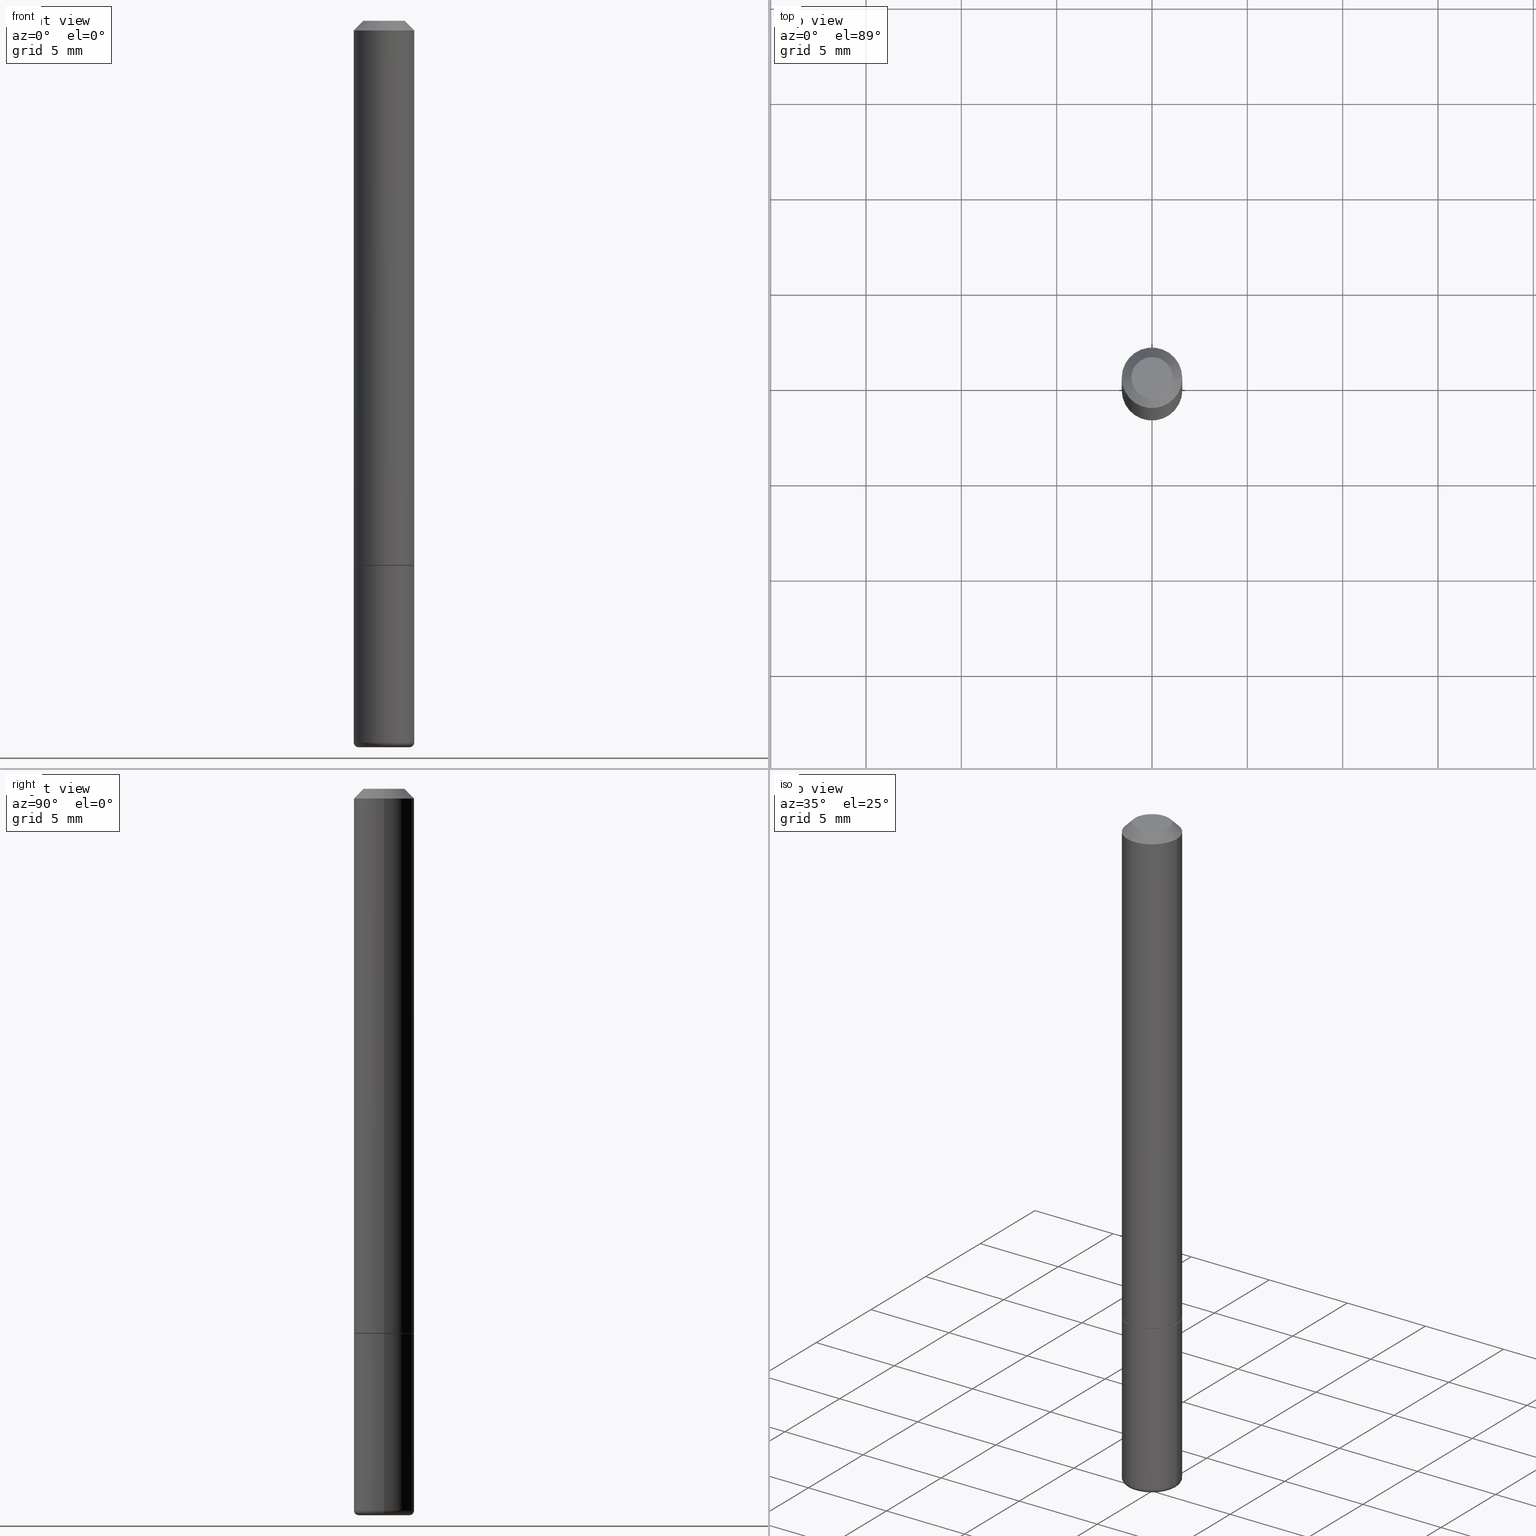
[diagram: canonical four-view strip — front | top / right | iso, engineering-drawing reading convention]
A machine part, canonical four-view strip (front | top / right | iso — engineering-drawing reading convention). The complete STEP part file that produces these views, byte-faithful:
ISO-10303-21;
HEADER;
FILE_DESCRIPTION (( 'STEP AP203' ),
    '1' );
FILE_NAME ('38775.STEP',
    '2024-03-03T12:03:35',
    ( '' ),
    ( '' ),
    'SwSTEP 2.0',
    'SolidWorks 2023',
    '' );
FILE_SCHEMA (( 'CONFIG_CONTROL_DESIGN' ));
ENDSEC;

DATA;
#1 = CC_DESIGN_PERSON_AND_ORGANIZATION_ASSIGNMENT ( #345, #135, ( #401 ) ) ;
#2 = AXIS2_PLACEMENT_3D ( 'NONE', #221, #358, #158 ) ;
#3 = AXIS2_PLACEMENT_3D ( 'NONE', #182, #318, #145 ) ;
#4 = DIRECTION ( 'NONE',  ( -2.445468806185136597E-29, 3.491481338843145583E-15, 1.000000000000000000 ) ) ;
#5 = DIRECTION ( 'NONE',  ( -1.000000000000000000, 6.982962677686265922E-15, -4.876176775795935793E-29 ) ) ;
#6 = ADVANCED_FACE ( 'NONE', ( #376 ), #415, .T. ) ;
#7 = CARTESIAN_POINT ( 'NONE',  ( 0.06250000000000001388, -4.986107516375840208E-16, -0.02000000000000006981 ) ) ;
#8 = EDGE_CURVE ( 'NONE', #286, #308, #151, .T. ) ;
#9 = ORIENTED_EDGE ( 'NONE', *, *, #80, .T. ) ;
#10 = VECTOR ( 'NONE', #352, 39.37007874015748143 ) ;
#11 = CC_DESIGN_APPROVAL ( #118, ( #390 ) ) ;
#12 = EDGE_CURVE ( 'NONE', #308, #286, #209, .T. ) ;
#13 = ORIENTED_EDGE ( 'NONE', *, *, #255, .T. ) ;
#14 = ORIENTED_EDGE ( 'NONE', *, *, #255, .F. ) ;
#15 = PERSON_AND_ORGANIZATION ( #346, #226 ) ;
#16 = CC_DESIGN_PERSON_AND_ORGANIZATION_ASSIGNMENT ( #263, #183, ( #139 ) ) ;
#17 = CARTESIAN_POINT ( 'NONE',  ( 0.05250000000000000500, -5.603827548843246548E-15, -1.499999999999999778 ) ) ;
#18 =( NAMED_UNIT ( * ) SI_UNIT ( $, .STERADIAN. ) SOLID_ANGLE_UNIT ( ) );
#19 = CARTESIAN_POINT ( 'NONE',  ( 0.06249999999999990286, -5.638742362231678986E-15, -1.490000000000000213 ) ) ;
#20 = AXIS2_PLACEMENT_3D ( 'NONE', #61, #276, #404 ) ;
#21 = CARTESIAN_POINT ( 'NONE',  ( 0.000000000000000000, 0.000000000000000000, 0.000000000000000000 ) ) ;
#22 = CARTESIAN_POINT ( 'NONE',  ( -0.04250000000000002387, 3.316907271900975110E-16, -2.561107494060466786E-17 ) ) ;
#23 = CALENDAR_DATE ( 2024, 3, 3 ) ;
#24 = CARTESIAN_POINT ( 'NONE',  ( 0.05250000000000000500, -5.568912735454817265E-15, -1.490000000000000213 ) ) ;
#25 =( LENGTH_UNIT ( ) NAMED_UNIT ( * ) SI_UNIT ( $, .METRE. ) );
#26 = PERSON_AND_ORGANIZATION ( #346, #226 ) ;
#27 = ORIENTED_EDGE ( 'NONE', *, *, #362, .F. ) ;
#28 = DIRECTION ( 'NONE',  ( 1.000000000000000000, -6.982962677686269866E-15, 0.000000000000000000 ) ) ;
#29 = TOROIDAL_SURFACE ( 'NONE', #167, 0.05250000000000000500, 0.009999999999999807654 ) ;
#30 = AXIS2_PLACEMENT_3D ( 'NONE', #189, #39, #159 ) ;
#31 = CARTESIAN_POINT ( 'NONE',  ( 2.751152406958279232E-29, -3.927916506198539224E-15, -1.125000000000000222 ) ) ;
#32 = DESIGN_CONTEXT ( 'detailed design', #387, 'design' ) ;
#33 = ORIENTED_EDGE ( 'NONE', *, *, #273, .T. ) ;
#34 = CONICAL_SURFACE ( 'NONE', #281, 0.06149999999999999911, 0.7853981633975591903 ) ;
#35 = FACE_OUTER_BOUND ( 'NONE', #42, .T. ) ;
#36 = CARTESIAN_POINT ( 'NONE',  ( -0.06149999999999999911, -3.490932723706077616E-15, -1.125000000000000222 ) ) ;
#37 = DIRECTION ( 'NONE',  ( -2.445468806185136597E-29, 3.491481338843145583E-15, 1.000000000000000000 ) ) ;
#38 = CARTESIAN_POINT ( 'NONE',  ( -0.05250000000000000500, -4.829272258602234782E-15, -1.490000000000000213 ) ) ;
#39 = DIRECTION ( 'NONE',  ( -2.445468806185136597E-29, 3.491481338843145583E-15, 1.000000000000000000 ) ) ;
#40 = AXIS2_PLACEMENT_3D ( 'NONE', #88, #62, #152 ) ;
#41 = AXIS2_PLACEMENT_3D ( 'NONE', #341, #212, #28 ) ;
#42 = EDGE_LOOP ( 'NONE', ( #302, #107, #136, #14 ) ) ;
#43 = DIRECTION ( 'NONE',  ( -1.000000000000000000, 6.982962677686267499E-15, 0.000000000000000000 ) ) ;
#44 = VERTEX_POINT ( 'NONE', #380 ) ;
#45 = VECTOR ( 'NONE', #214, 39.37007874015748143 ) ;
#46 = CIRCLE ( 'NONE', #20, 0.06149999999999999911 ) ;
#47 = ORIENTED_EDGE ( 'NONE', *, *, #98, .F. ) ;
#48 = ORIENTED_EDGE ( 'NONE', *, *, #322, .F. ) ;
#49 = APPROVAL ( #284, 'UNSPECIFIED' ) ;
#50 = ORIENTED_EDGE ( 'NONE', *, *, #69, .T. ) ;
#51 = DIRECTION ( 'NONE',  ( 1.000000000000000000, -6.982962677686267499E-15, 4.879498284297441184E-29 ) ) ;
#52 = VERTEX_POINT ( 'NONE', #277 ) ;
#53 = FACE_OUTER_BOUND ( 'NONE', #364, .T. ) ;
#54 = AXIS2_PLACEMENT_3D ( 'NONE', #293, #129, #95 ) ;
#55 = DIRECTION ( 'NONE',  ( -2.445468806185136597E-29, 3.491481338843145583E-15, 1.000000000000000000 ) ) ;
#56 = ORIENTED_EDGE ( 'NONE', *, *, #173, .T. ) ;
#57 = PERSON_AND_ORGANIZATION ( #346, #226 ) ;
#58 = ORIENTED_EDGE ( 'NONE', *, *, #351, .F. ) ;
#59 = CALENDAR_DATE ( 2024, 3, 3 ) ;
#60 = FACE_OUTER_BOUND ( 'NONE', #76, .T. ) ;
#61 = CARTESIAN_POINT ( 'NONE',  ( 2.751152406958279232E-29, -3.927916506198539224E-15, -1.125000000000000222 ) ) ;
#62 = DIRECTION ( 'NONE',  ( -2.445468806185136597E-29, 3.491481338843145583E-15, 1.000000000000000000 ) ) ;
#63 = DIRECTION ( 'NONE',  ( 1.000000000000000000, -6.982962677686273021E-15, 0.000000000000000000 ) ) ;
#64 = AXIS2_PLACEMENT_3D ( 'NONE', #24, #67, #63 ) ;
#65 = TOROIDAL_SURFACE ( 'NONE', #30, 0.05250000000000000500, 0.009999999999999807654 ) ;
#66 = ADVANCED_FACE ( 'NONE', ( #249 ), #283, .T. ) ;
#67 = DIRECTION ( 'NONE',  ( -6.982962677686266711E-15, -1.000000000000000000, 3.491481338843145583E-15 ) ) ;
#68 = FACE_OUTER_BOUND ( 'NONE', #237, .T. ) ;
#69 = EDGE_CURVE ( 'NONE', #270, #300, #296, .T. ) ;
#70 = AXIS2_PLACEMENT_3D ( 'NONE', #385, #316, #217 ) ;
#71 = DIRECTION ( 'NONE',  ( 0.7071067811865466846, -7.319954787623252890E-15, -0.7071067811865483499 ) ) ;
#72 = AXIS2_PLACEMENT_3D ( 'NONE', #38, #294, #252 ) ;
#73 = AXIS2_PLACEMENT_3D ( 'NONE', #156, #288, #126 ) ;
#74 = EDGE_CURVE ( 'NONE', #197, #52, #225, .T. ) ;
#75 = ORIENTED_EDGE ( 'NONE', *, *, #416, .T. ) ;
#76 = EDGE_LOOP ( 'NONE', ( #199, #176, #272, #140 ) ) ;
#77 = ORIENTED_EDGE ( 'NONE', *, *, #12, .T. ) ;
#78 = SECURITY_CLASSIFICATION_LEVEL ( 'unclassified' ) ;
#79 = AXIS2_PLACEMENT_3D ( 'NONE', #31, #178, #280 ) ;
#80 = EDGE_CURVE ( 'NONE', #373, #308, #148, .T. ) ;
#81 = DIRECTION ( 'NONE',  ( 0.000000000000000000, 0.000000000000000000, 1.000000000000000000 ) ) ;
#82 = EDGE_CURVE ( 'NONE', #44, #52, #384, .T. ) ;
#83 = DIRECTION ( 'NONE',  ( 1.000000000000000000, -6.982962677686266711E-15, 4.876176775795935793E-29 ) ) ;
#84 = FACE_OUTER_BOUND ( 'NONE', #314, .T. ) ;
#85 = APPROVAL_DATE_TIME ( #240, #118 ) ;
#86 = CIRCLE ( 'NONE', #72, 0.009999999999999807654 ) ;
#87 = DIRECTION ( 'NONE',  ( -2.445468806185136597E-29, 3.491481338843145583E-15, 1.000000000000000000 ) ) ;
#88 = CARTESIAN_POINT ( 'NONE',  ( 4.890937612370289799E-31, -6.982962677686315028E-17, -0.02000000000000006981 ) ) ;
#89 = SHAPE_DEFINITION_REPRESENTATION ( #329, #198 ) ;
#90 = CIRCLE ( 'NONE', #360, 0.04250000000000002387 ) ;
#91 = ADVANCED_FACE ( 'NONE', ( #60 ), #34, .T. ) ;
#92 = DIRECTION ( 'NONE',  ( -2.445468806185136597E-29, 3.491481338843145583E-15, 1.000000000000000000 ) ) ;
#93 = CARTESIAN_POINT ( 'NONE',  ( -0.05250000000000000500, -4.811202528508446355E-15, -1.499999999999999778 ) ) ;
#94 = CIRCLE ( 'NONE', #40, 0.06250000000000001388 ) ;
#95 = DIRECTION ( 'NONE',  ( 1.000000000000000000, -6.982962677686269077E-15, 0.000000000000000000 ) ) ;
#96 = CARTESIAN_POINT ( 'NONE',  ( -0.06249999999999990286, -4.758217985026225489E-15, -1.490000000000000213 ) ) ;
#97 = VERTEX_POINT ( 'NONE', #228 ) ;
#98 = EDGE_CURVE ( 'NONE', #97, #197, #257, .T. ) ;
#99 = ORIENTED_EDGE ( 'NONE', *, *, #154, .F. ) ;
#100 = CYLINDRICAL_SURFACE ( 'NONE', #2, 0.06250000000000008327 ) ;
#101 = ORIENTED_EDGE ( 'NONE', *, *, #154, .T. ) ;
#102 = EDGE_CURVE ( 'NONE', #300, #286, #128, .T. ) ;
#103 = EDGE_LOOP ( 'NONE', ( #233, #77 ) ) ;
#104 = ORIENTED_EDGE ( 'NONE', *, *, #8, .F. ) ;
#105 = FACE_OUTER_BOUND ( 'NONE', #166, .T. ) ;
#106 = VECTOR ( 'NONE', #256, 39.37007874015748143 ) ;
#107 = ORIENTED_EDGE ( 'NONE', *, *, #355, .T. ) ;
#108 = CARTESIAN_POINT ( 'NONE',  ( 2.751152406958279232E-29, -3.927916506198539224E-15, -1.125000000000000222 ) ) ;
#109 = ORIENTED_EDGE ( 'NONE', *, *, #375, .T. ) ;
#110 = CARTESIAN_POINT ( 'NONE',  ( 0.000000000000000000, 0.000000000000000000, 0.000000000000000000 ) ) ;
#111 = APPLICATION_PROTOCOL_DEFINITION ( 'international standard', 'config_control_design', 1994, #387 ) ;
#112 = CALENDAR_DATE ( 2024, 3, 3 ) ;
#113 = CLOSED_SHELL ( 'NONE', ( #6, #132, #134, #269, #365, #188 ) ) ;
#114 = EDGE_CURVE ( 'NONE', #200, #373, #86, .T. ) ;
#115 = EDGE_LOOP ( 'NONE', ( #47, #245, #369, #395 ) ) ;
#116 = CARTESIAN_POINT ( 'NONE',  ( 4.890937612370289799E-31, -6.982962677686315028E-17, -0.02000000000000006981 ) ) ;
#117 =( NAMED_UNIT ( * ) PLANE_ANGLE_UNIT ( ) SI_UNIT ( $, .RADIAN. ) );
#118 = APPROVAL ( #378, 'UNSPECIFIED' ) ;
#119 = DATE_AND_TIME ( #338, #251 ) ;
#120 = LINE ( 'NONE', #161, #157 ) ;
#121 = CARTESIAN_POINT ( 'NONE',  ( 2.751152406958279232E-29, -3.927916506198539224E-15, -1.125000000000000222 ) ) ;
#122 = DIRECTION ( 'NONE',  ( -0.7071067811865466846, 2.468850131082247989E-15, -0.7071067811865483499 ) ) ;
#123 = CARTESIAN_POINT ( 'NONE',  ( 0.06250000000000000000, -4.364351673553916694E-16, 3.047610484872459871E-30 ) ) ;
#124 = CIRCLE ( 'NONE', #319, 0.05250000000000000500 ) ;
#125 = CC_DESIGN_SECURITY_CLASSIFICATION ( #401, ( #139 ) ) ;
#126 = DIRECTION ( 'NONE',  ( -1.000000000000000000, 6.982962677686265922E-15, -4.876176775795935793E-29 ) ) ;
#127 = CARTESIAN_POINT ( 'NONE',  ( 3.668203209277704335E-29, -5.237222008264717388E-15, -1.499999999999999778 ) ) ;
#128 = LINE ( 'NONE', #123, #303 ) ;
#129 = DIRECTION ( 'NONE',  ( -2.445468806185136597E-29, 3.491481338843145583E-15, 1.000000000000000000 ) ) ;
#130 = VECTOR ( 'NONE', #71, 39.37007874015748143 ) ;
#131 = CC_DESIGN_PERSON_AND_ORGANIZATION_ASSIGNMENT ( #15, #339, ( #230 ) ) ;
#132 = ADVANCED_FACE ( 'NONE', ( #224 ), #29, .T. ) ;
#133 = CIRCLE ( 'NONE', #304, 0.06149999999999999911 ) ;
#134 = ADVANCED_FACE ( 'NONE', ( #328 ), #258, .F. ) ;
#135 = PERSON_AND_ORGANIZATION_ROLE ( 'classification_officer' ) ;
#136 = ORIENTED_EDGE ( 'NONE', *, *, #334, .F. ) ;
#137 = ORIENTED_EDGE ( 'NONE', *, *, #173, .F. ) ;
#138 = ADVANCED_FACE ( 'NONE', ( #68 ), #174, .T. ) ;
#139 = PRODUCT_DEFINITION_FORMATION_WITH_SPECIFIED_SOURCE ( 'ANY', '', #230, .NOT_KNOWN. ) ;
#140 = ORIENTED_EDGE ( 'NONE', *, *, #82, .F. ) ;
#141 = CARTESIAN_POINT ( 'NONE',  ( 6.263108486011318528E-46, -8.942059022282683748E-32, -2.561107494060246767E-17 ) ) ;
#142 = CC_DESIGN_PERSON_AND_ORGANIZATION_ASSIGNMENT ( #354, #223, ( #139 ) ) ;
#143 = DIRECTION ( 'NONE',  ( 1.000000000000000000, 0.000000000000000000, 0.000000000000000000 ) ) ;
#144 = DIRECTION ( 'NONE',  ( 1.000000000000000000, -6.982962677686262766E-15, 0.000000000000000000 ) ) ;
#145 = DIRECTION ( 'NONE',  ( 1.000000000000000000, -6.982962677686267499E-15, 0.000000000000000000 ) ) ;
#146 = DIRECTION ( 'NONE',  ( 2.445468806185136597E-29, -3.491481338843145583E-15, -1.000000000000000000 ) ) ;
#147 = APPROVAL_ROLE ( '' ) ;
#148 = LINE ( 'NONE', #408, #45 ) ;
#149 = DIRECTION ( 'NONE',  ( 1.000000000000000000, -6.982962677686267499E-15, 0.000000000000000000 ) ) ;
#150 = DIRECTION ( 'NONE',  ( -1.000000000000000000, 6.982962677686267499E-15, 0.000000000000000000 ) ) ;
#151 = CIRCLE ( 'NONE', #410, 0.06250000000000000000 ) ;
#152 = DIRECTION ( 'NONE',  ( 1.000000000000000000, -6.982962677686267499E-15, 0.000000000000000000 ) ) ;
#153 = MANIFOLD_SOLID_BREP ( 'Body-Move/Copy2[1]', #113 ) ;
#154 = EDGE_CURVE ( 'NONE', #300, #373, #236, .T. ) ;
#155 = COORDINATED_UNIVERSAL_TIME_OFFSET ( 5, 0, .BEHIND. ) ;
#156 = CARTESIAN_POINT ( 'NONE',  ( 2.967759138016664535E-16, 0.04250000000000002387, -1.611934943711350245E-16 ) ) ;
#157 = VECTOR ( 'NONE', #330, 39.37007874015748143 ) ;
#158 = DIRECTION ( 'NONE',  ( 1.000000000000000000, -6.982962677686266711E-15, 4.876176775795935793E-29 ) ) ;
#159 = DIRECTION ( 'NONE',  ( 1.000000000000000000, -6.982962677686268288E-15, 4.883557194083114022E-29 ) ) ;
#160 = DIRECTION ( 'NONE',  ( -2.445468806185136877E-29, 3.491481338843145188E-15, 1.000000000000000000 ) ) ;
#161 = CARTESIAN_POINT ( 'NONE',  ( -0.06250000000000008327, 4.440892098500632078E-16, -3.074334431409319967E-30 ) ) ;
#162 = FACE_OUTER_BOUND ( 'NONE', #336, .T. ) ;
#163 = CC_DESIGN_APPROVAL ( #49, ( #401 ) ) ;
#164 = ORIENTED_EDGE ( 'NONE', *, *, #102, .F. ) ;
#165 = CARTESIAN_POINT ( 'NONE',  ( 3.668203209277704335E-29, -5.237222008264717388E-15, -1.499999999999999778 ) ) ;
#166 = EDGE_LOOP ( 'NONE', ( #58, #48 ) ) ;
#167 = AXIS2_PLACEMENT_3D ( 'NONE', #220, #186, #190 ) ;
#168 = AXIS2_PLACEMENT_3D ( 'NONE', #141, #400, #51 ) ;
#169 = ORIENTED_EDGE ( 'NONE', *, *, #69, .F. ) ;
#170 = DIRECTION ( 'NONE',  ( 2.438088387897960049E-29, -3.491481338843145188E-15, -1.000000000000000000 ) ) ;
#171 = DATE_AND_TIME ( #112, #193 ) ;
#172 = ORIENTED_EDGE ( 'NONE', *, *, #334, .T. ) ;
#173 = EDGE_CURVE ( 'NONE', #343, #204, #94, .T. ) ;
#174 = CONICAL_SURFACE ( 'NONE', #216, 0.06250000000000001388, 0.7853981633974471688 ) ;
#175 = AXIS2_PLACEMENT_3D ( 'NONE', #271, #55, #409 ) ;
#176 = ORIENTED_EDGE ( 'NONE', *, *, #98, .T. ) ;
#177 = DATE_AND_TIME ( #23, #202 ) ;
#178 = DIRECTION ( 'NONE',  ( -2.445468806185136597E-29, 3.491481338843145583E-15, 1.000000000000000000 ) ) ;
#179 = UNCERTAINTY_MEASURE_WITH_UNIT (LENGTH_MEASURE( 1.000000000000000082E-05 ), #405, 'distance_accuracy_value', 'NONE');
#180 = DIRECTION ( 'NONE',  ( 1.000000000000000000, -6.982962677686269866E-15, 0.000000000000000000 ) ) ;
#181 = CARTESIAN_POINT ( 'NONE',  ( 0.06149999999999999911, -4.357368710876244879E-15, -1.125000000000000222 ) ) ;
#182 = CARTESIAN_POINT ( 'NONE',  ( 4.890937612370289799E-31, -6.982962677686315028E-17, -0.02000000000000006981 ) ) ;
#183 = PERSON_AND_ORGANIZATION_ROLE ( 'design_supplier' ) ;
#184 = AXIS2_PLACEMENT_3D ( 'NONE', #407, #81, #143 ) ;
#185 = CARTESIAN_POINT ( 'NONE',  ( 6.263108486011318528E-46, -8.942059022282683748E-32, -2.561107494060246767E-17 ) ) ;
#186 = DIRECTION ( 'NONE',  ( -2.445468806185136597E-29, 3.491481338843145583E-15, 1.000000000000000000 ) ) ;
#187 = AXIS2_PLACEMENT_3D ( 'NONE', #108, #279, #289 ) ;
#188 = ADVANCED_FACE ( 'NONE', ( #285 ), #359, .T. ) ;
#189 = CARTESIAN_POINT ( 'NONE',  ( 3.643748521215853910E-29, -5.202307194876288105E-15, -1.490000000000000213 ) ) ;
#190 = DIRECTION ( 'NONE',  ( 1.000000000000000000, -6.982962677686268288E-15, 4.883557194083114022E-29 ) ) ;
#191 = ORIENTED_EDGE ( 'NONE', *, *, #375, .F. ) ;
#192 = CIRCLE ( 'NONE', #54, 0.06250000000000015266 ) ;
#193 = LOCAL_TIME ( 7, 3, 35.00000000000000000, #278 ) ;
#194 = DIRECTION ( 'NONE',  ( 2.445468806185136597E-29, -3.491481338843145583E-15, -1.000000000000000000 ) ) ;
#195 = DIMENSIONAL_EXPONENTS ( 1.000000000000000000, 0.000000000000000000, 0.000000000000000000, 0.000000000000000000, 0.000000000000000000, 0.000000000000000000, 0.000000000000000000 ) ;
#196 = ORIENTED_EDGE ( 'NONE', *, *, #402, .T. ) ;
#197 = VERTEX_POINT ( 'NONE', #394 ) ;
#198 = ADVANCED_BREP_SHAPE_REPRESENTATION ( '38775', ( #153, #298, #184 ), #332 ) ;
#199 = ORIENTED_EDGE ( 'NONE', *, *, #351, .T. ) ;
#200 = VERTEX_POINT ( 'NONE', #93 ) ;
#201 = VECTOR ( 'NONE', #367, 39.37007874015748143 ) ;
#202 = LOCAL_TIME ( 7, 3, 35.00000000000000000, #282 ) ;
#203 = DATE_TIME_ROLE ( 'classification_date' ) ;
#204 = VERTEX_POINT ( 'NONE', #7 ) ;
#205 = ADVANCED_FACE ( 'NONE', ( #35 ), #100, .T. ) ;
#206 = APPROVAL_ROLE ( '' ) ;
#207 = ORIENTED_EDGE ( 'NONE', *, *, #287, .F. ) ;
#208 = ORIENTED_EDGE ( 'NONE', *, *, #416, .F. ) ;
#209 = CIRCLE ( 'NONE', #79, 0.06250000000000000000 ) ;
#210 = PERSON_AND_ORGANIZATION_ROLE ( 'creator' ) ;
#211 = DIRECTION ( 'NONE',  ( 1.000000000000000000, -6.982962677686266711E-15, 4.876176775795935793E-29 ) ) ;
#212 = DIRECTION ( 'NONE',  ( -2.445468806185136597E-29, 3.491481338843145583E-15, 1.000000000000000000 ) ) ;
#213 = COORDINATED_UNIVERSAL_TIME_OFFSET ( 5, 0, .BEHIND. ) ;
#214 = DIRECTION ( 'NONE',  ( -2.445468806185136877E-29, 3.491481338843145188E-15, 1.000000000000000000 ) ) ;
#215 = FACE_OUTER_BOUND ( 'NONE', #115, .T. ) ;
#216 = AXIS2_PLACEMENT_3D ( 'NONE', #116, #146, #150 ) ;
#217 = DIRECTION ( 'NONE',  ( 1.000000000000000000, -6.982962677686266711E-15, 4.876176775795935793E-29 ) ) ;
#218 = CARTESIAN_POINT ( 'NONE',  ( 0.04250000000000002387, -3.950909582714371883E-16, -2.561107494060004870E-17 ) ) ;
#219 = APPROVAL ( #383, 'UNSPECIFIED' ) ;
#220 = CARTESIAN_POINT ( 'NONE',  ( 3.643748521215853910E-29, -5.202307194876288105E-15, -1.490000000000000213 ) ) ;
#221 = CARTESIAN_POINT ( 'NONE',  ( 0.000000000000000000, 0.000000000000000000, 0.000000000000000000 ) ) ;
#222 = EDGE_CURVE ( 'NONE', #52, #197, #192, .T. ) ;
#223 = PERSON_AND_ORGANIZATION_ROLE ( 'creator' ) ;
#224 = FACE_OUTER_BOUND ( 'NONE', #264, .T. ) ;
#225 = CIRCLE ( 'NONE', #386, 0.06250000000000015266 ) ;
#226 = ORGANIZATION ( 'UNSPECIFIED', 'UNSPECIFIED', '' ) ;
#227 = FACE_OUTER_BOUND ( 'NONE', #310, .T. ) ;
#228 = CARTESIAN_POINT ( 'NONE',  ( -0.06149999999999999911, -3.485634269357855609E-15, -1.125000000000000222 ) ) ;
#229 = DIRECTION ( 'NONE',  ( -2.445468806185136597E-29, 3.491481338843145583E-15, 1.000000000000000000 ) ) ;
#230 = PRODUCT ( '38775', '38775', '', ( #317 ) ) ;
#231 = ORIENTED_EDGE ( 'NONE', *, *, #355, .F. ) ;
#232 = CARTESIAN_POINT ( 'NONE',  ( 0.06250000000000008327, -4.364351673553922611E-16, 3.047610484872464074E-30 ) ) ;
#233 = ORIENTED_EDGE ( 'NONE', *, *, #8, .T. ) ;
#234 = ORIENTED_EDGE ( 'NONE', *, *, #402, .F. ) ;
#235 = PLANE ( 'NONE',  #187 ) ;
#236 = CIRCLE ( 'NONE', #259, 0.06250000000000000000 ) ;
#237 = EDGE_LOOP ( 'NONE', ( #27, #207, #196, #56 ) ) ;
#238 = ADVANCED_FACE ( 'NONE', ( #227 ), #290, .T. ) ;
#239 = DIRECTION ( 'NONE',  ( -2.445468806185136597E-29, 3.491481338843145583E-15, 1.000000000000000000 ) ) ;
#240 = DATE_AND_TIME ( #59, #411 ) ;
#241 = DIRECTION ( 'NONE',  ( -2.445468806185136597E-29, 3.491481338843145583E-15, 1.000000000000000000 ) ) ;
#242 = DIRECTION ( 'NONE',  ( 1.000000000000000000, -6.982962677686267499E-15, 4.879498284297441184E-29 ) ) ;
#243 = AXIS2_PLACEMENT_3D ( 'NONE', #21, #321, #211 ) ;
#244 = CC_DESIGN_APPROVAL ( #219, ( #139 ) ) ;
#245 = ORIENTED_EDGE ( 'NONE', *, *, #322, .T. ) ;
#246 = CARTESIAN_POINT ( 'NONE',  ( 3.643748521215853910E-29, -5.202307194876288105E-15, -1.490000000000000213 ) ) ;
#247 = APPLICATION_PROTOCOL_DEFINITION ( 'international standard', 'config_control_design', 1994, #418 ) ;
#248 = APPROVAL_DATE_TIME ( #119, #49 ) ;
#249 = FACE_OUTER_BOUND ( 'NONE', #265, .T. ) ;
#250 = DIRECTION ( 'NONE',  ( 1.000000000000000000, -6.982962677686262766E-15, 0.000000000000000000 ) ) ;
#251 = LOCAL_TIME ( 7, 3, 35.00000000000000000, #155 ) ;
#252 = DIRECTION ( 'NONE',  ( -1.000000000000000000, 7.105427357600966360E-15, 0.000000000000000000 ) ) ;
#253 = LOCAL_TIME ( 7, 3, 35.00000000000000000, #342 ) ;
#254 = APPROVAL_DATE_TIME ( #171, #219 ) ;
#255 = EDGE_CURVE ( 'NONE', #52, #204, #301, .T. ) ;
#256 = DIRECTION ( 'NONE',  ( -0.7071067811866259545, 7.493145998870638150E-15, 0.7071067811864690800 ) ) ;
#257 = LINE ( 'NONE', #36, #106 ) ;
#258 = PLANE ( 'NONE',  #312 ) ;
#259 = AXIS2_PLACEMENT_3D ( 'NONE', #246, #382, #250 ) ;
#260 = LINE ( 'NONE', #262, #130 ) ;
#261 = EDGE_CURVE ( 'NONE', #200, #270, #124, .T. ) ;
#262 = CARTESIAN_POINT ( 'NONE',  ( 0.06250000000000001388, -4.986107516375840208E-16, -0.02000000000000006981 ) ) ;
#263 = PERSON_AND_ORGANIZATION ( #346, #226 ) ;
#264 = EDGE_LOOP ( 'NONE', ( #109, #366, #99, #169 ) ) ;
#265 = EDGE_LOOP ( 'NONE', ( #231, #309, #13, #137 ) ) ;
#266 = ADVANCED_FACE ( 'NONE', ( #215 ), #370, .T. ) ;
#267 = ORIENTED_EDGE ( 'NONE', *, *, #261, .F. ) ;
#268 = CALENDAR_DATE ( 2024, 3, 3 ) ;
#269 = ADVANCED_FACE ( 'NONE', ( #53 ), #311, .T. ) ;
#270 = VERTEX_POINT ( 'NONE', #17 ) ;
#271 = CARTESIAN_POINT ( 'NONE',  ( 3.643748521215853910E-29, -5.202307194876288105E-15, -1.490000000000000213 ) ) ;
#272 = ORIENTED_EDGE ( 'NONE', *, *, #222, .F. ) ;
#273 = EDGE_CURVE ( 'NONE', #373, #300, #389, .T. ) ;
#274 = AXIS2_PLACEMENT_3D ( 'NONE', #110, #239, #83 ) ;
#275 = VERTEX_POINT ( 'NONE', #22 ) ;
#276 = DIRECTION ( 'NONE',  ( -2.445468806185136597E-29, 3.491481338843145583E-15, 1.000000000000000000 ) ) ;
#277 = CARTESIAN_POINT ( 'NONE',  ( 0.06250000000000015266, -4.360860192215089464E-15, -1.124000000000000332 ) ) ;
#278 = COORDINATED_UNIVERSAL_TIME_OFFSET ( 5, 0, .BEHIND. ) ;
#279 = DIRECTION ( 'NONE',  ( -2.438088387897960049E-29, 3.491481338843145188E-15, 1.000000000000000000 ) ) ;
#280 = DIRECTION ( 'NONE',  ( 1.000000000000000000, -6.982962677686262766E-15, 0.000000000000000000 ) ) ;
#281 = AXIS2_PLACEMENT_3D ( 'NONE', #413, #37, #326 ) ;
#282 = COORDINATED_UNIVERSAL_TIME_OFFSET ( 5, 0, .BEHIND. ) ;
#283 = CYLINDRICAL_SURFACE ( 'NONE', #70, 0.06250000000000008327 ) ;
#284 = APPROVAL_STATUS ( 'not_yet_approved' ) ;
#285 = FACE_OUTER_BOUND ( 'NONE', #340, .T. ) ;
#286 = VERTEX_POINT ( 'NONE', #371 ) ;
#287 = EDGE_CURVE ( 'NONE', #275, #396, #372, .T. ) ;
#288 = DIRECTION ( 'NONE',  ( 2.438088387897960049E-29, -3.491481338843145188E-15, -1.000000000000000000 ) ) ;
#289 = DIRECTION ( 'NONE',  ( 1.000000000000000000, -6.982962677686265922E-15, 4.876176775795935793E-29 ) ) ;
#290 = CONICAL_SURFACE ( 'NONE', #331, 0.06250000000000001388, 0.7853981633974471688 ) ;
#291 = CIRCLE ( 'NONE', #313, 0.05250000000000000500 ) ;
#292 = DIRECTION ( 'NONE',  ( 2.438088387897960049E-29, -3.491481338843145188E-15, -1.000000000000000000 ) ) ;
#293 = CARTESIAN_POINT ( 'NONE',  ( 2.748706938152094189E-29, -3.924425024859696217E-15, -1.124000000000000332 ) ) ;
#294 = DIRECTION ( 'NONE',  ( 7.105427357601001859E-15, 1.000000000000000000, -3.491481338843145583E-15 ) ) ;
#295 = CLOSED_SHELL ( 'NONE', ( #91, #205, #238, #138, #66, #266, #347, #391 ) ) ;
#296 = CIRCLE ( 'NONE', #64, 0.009999999999999807654 ) ;
#297 = VECTOR ( 'NONE', #122, 39.37007874015748143 ) ;
#298 = MANIFOLD_SOLID_BREP ( 'Body-Move/Copy2[2]', #295 ) ;
#299 = CC_DESIGN_DATE_AND_TIME_ASSIGNMENT ( #414, #203, ( #401 ) ) ;
#300 = VERTEX_POINT ( 'NONE', #19 ) ;
#301 = LINE ( 'NONE', #232, #201 ) ;
#302 = ORIENTED_EDGE ( 'NONE', *, *, #222, .T. ) ;
#303 = VECTOR ( 'NONE', #160, 39.37007874015748143 ) ;
#304 = AXIS2_PLACEMENT_3D ( 'NONE', #325, #4, #180 ) ;
#305 = PRODUCT_RELATED_PRODUCT_CATEGORY ( 'detail', '', ( #230 ) ) ;
#306 = ORIENTED_EDGE ( 'NONE', *, *, #80, .F. ) ;
#307 = DIRECTION ( 'NONE',  ( -1.000000000000000000, 6.982962677686265922E-15, -4.876176775795935793E-29 ) ) ;
#308 = VERTEX_POINT ( 'NONE', #350 ) ;
#309 = ORIENTED_EDGE ( 'NONE', *, *, #74, .T. ) ;
#310 = EDGE_LOOP ( 'NONE', ( #208, #403, #172, #234 ) ) ;
#311 = CYLINDRICAL_SURFACE ( 'NONE', #274, 0.06250000000000000000 ) ;
#312 = AXIS2_PLACEMENT_3D ( 'NONE', #323, #292, #5 ) ;
#313 = AXIS2_PLACEMENT_3D ( 'NONE', #127, #229, #374 ) ;
#314 = EDGE_LOOP ( 'NONE', ( #348, #75 ) ) ;
#315 = PERSON_AND_ORGANIZATION ( #346, #226 ) ;
#316 = DIRECTION ( 'NONE',  ( -2.445468806185136597E-29, 3.491481338843145583E-15, 1.000000000000000000 ) ) ;
#317 = MECHANICAL_CONTEXT ( 'NONE', #418, 'mechanical' ) ;
#318 = DIRECTION ( 'NONE',  ( -2.445468806185136597E-29, 3.491481338843145583E-15, 1.000000000000000000 ) ) ;
#319 = AXIS2_PLACEMENT_3D ( 'NONE', #165, #344, #149 ) ;
#320 = APPROVAL_PERSON_ORGANIZATION ( #57, #118, #349 ) ;
#321 = DIRECTION ( 'NONE',  ( -2.445468806185136597E-29, 3.491481338843145583E-15, 1.000000000000000000 ) ) ;
#322 = EDGE_CURVE ( 'NONE', #97, #44, #46, .T. ) ;
#323 = CARTESIAN_POINT ( 'NONE',  ( 2.751152406958279232E-29, -3.927916506198539224E-15, -1.125000000000000222 ) ) ;
#324 = CC_DESIGN_DATE_AND_TIME_ASSIGNMENT ( #177, #412, ( #390 ) ) ;
#325 = CARTESIAN_POINT ( 'NONE',  ( 2.751152406958279232E-29, -3.927916506198539224E-15, -1.125000000000000222 ) ) ;
#326 = DIRECTION ( 'NONE',  ( 1.000000000000000000, -6.982962677686269866E-15, 0.000000000000000000 ) ) ;
#327 = CARTESIAN_POINT ( 'NONE',  ( 1.456899896977457955E-28, 1.037333795553096672E-14, -1.500000000000000222 ) ) ;
#328 = FACE_OUTER_BOUND ( 'NONE', #103, .T. ) ;
#329 = PRODUCT_DEFINITION_SHAPE ( 'NONE', 'NONE',  #390 ) ;
#330 = DIRECTION ( 'NONE',  ( -2.445468806185136877E-29, 3.491481338843145188E-15, 1.000000000000000000 ) ) ;
#331 = AXIS2_PLACEMENT_3D ( 'NONE', #335, #194, #43 ) ;
#332 =( GEOMETRIC_REPRESENTATION_CONTEXT ( 3 ) GLOBAL_UNCERTAINTY_ASSIGNED_CONTEXT ( ( #179 ) ) GLOBAL_UNIT_ASSIGNED_CONTEXT ( ( #405, #117, #18 ) ) REPRESENTATION_CONTEXT ( 'NONE', 'WORKASPACE' ) );
#333 = ORIENTED_EDGE ( 'NONE', *, *, #261, .T. ) ;
#334 = EDGE_CURVE ( 'NONE', #204, #343, #337, .T. ) ;
#335 = CARTESIAN_POINT ( 'NONE',  ( 4.890937612370289799E-31, -6.982962677686315028E-17, -0.02000000000000006981 ) ) ;
#336 = EDGE_LOOP ( 'NONE', ( #399, #333, #50, #377 ) ) ;
#337 = CIRCLE ( 'NONE', #3, 0.06250000000000001388 ) ;
#338 = CALENDAR_DATE ( 2024, 3, 3 ) ;
#339 = PERSON_AND_ORGANIZATION_ROLE ( 'design_owner' ) ;
#340 = EDGE_LOOP ( 'NONE', ( #191, #267 ) ) ;
#341 = CARTESIAN_POINT ( 'NONE',  ( 2.751152406958279232E-29, -3.927916506198539224E-15, -1.125000000000000222 ) ) ;
#342 = COORDINATED_UNIVERSAL_TIME_OFFSET ( 5, 0, .BEHIND. ) ;
#343 = VERTEX_POINT ( 'NONE', #398 ) ;
#344 = DIRECTION ( 'NONE',  ( -2.445468806185136597E-29, 3.491481338843145583E-15, 1.000000000000000000 ) ) ;
#345 = PERSON_AND_ORGANIZATION ( #346, #226 ) ;
#346 = PERSON ( 'UNSPECIFIED', 'UNSPECIFIED', 'UNSPECIFIED', ('UNSPECIFIED'), ('UNSPECIFIED'), ('UNSPECIFIED') ) ;
#347 = ADVANCED_FACE ( 'NONE', ( #105 ), #235, .F. ) ;
#348 = ORIENTED_EDGE ( 'NONE', *, *, #287, .T. ) ;
#349 = APPROVAL_ROLE ( '' ) ;
#350 = CARTESIAN_POINT ( 'NONE',  ( -0.06250000000000000000, -4.121022640687350654E-15, -1.125000000000000222 ) ) ;
#351 = EDGE_CURVE ( 'NONE', #44, #97, #133, .T. ) ;
#352 = DIRECTION ( 'NONE',  ( 0.7071067811866259545, -2.468850131083078659E-15, 0.7071067811864690800 ) ) ;
#353 = PLANE ( 'NONE',  #73 ) ;
#354 = PERSON_AND_ORGANIZATION ( #346, #226 ) ;
#355 = EDGE_CURVE ( 'NONE', #197, #343, #120, .T. ) ;
#356 = EDGE_LOOP ( 'NONE', ( #101, #9, #104, #164 ) ) ;
#357 = LINE ( 'NONE', #417, #297 ) ;
#358 = DIRECTION ( 'NONE',  ( -2.445468806185136597E-29, 3.491481338843145583E-15, 1.000000000000000000 ) ) ;
#359 = PLANE ( 'NONE',  #388 ) ;
#360 = AXIS2_PLACEMENT_3D ( 'NONE', #185, #92, #242 ) ;
#361 = LENGTH_MEASURE_WITH_UNIT ( LENGTH_MEASURE( 0.02539999999999999897 ), #25 );
#362 = EDGE_CURVE ( 'NONE', #396, #204, #260, .T. ) ;
#363 = APPROVAL_PERSON_ORGANIZATION ( #315, #219, #147 ) ;
#364 = EDGE_LOOP ( 'NONE', ( #306, #33, #393, #368 ) ) ;
#365 = ADVANCED_FACE ( 'NONE', ( #162 ), #65, .T. ) ;
#366 = ORIENTED_EDGE ( 'NONE', *, *, #114, .T. ) ;
#367 = DIRECTION ( 'NONE',  ( -2.445468806185136877E-29, 3.491481338843145188E-15, 1.000000000000000000 ) ) ;
#368 = ORIENTED_EDGE ( 'NONE', *, *, #12, .F. ) ;
#369 = ORIENTED_EDGE ( 'NONE', *, *, #82, .T. ) ;
#370 = CONICAL_SURFACE ( 'NONE', #41, 0.06149999999999999911, 0.7853981633975591903 ) ;
#371 = CARTESIAN_POINT ( 'NONE',  ( 0.06250000000000000000, -4.364351673553930894E-15, -1.125000000000000222 ) ) ;
#372 = CIRCLE ( 'NONE', #168, 0.04250000000000002387 ) ;
#373 = VERTEX_POINT ( 'NONE', #96 ) ;
#374 = DIRECTION ( 'NONE',  ( 1.000000000000000000, -6.982962677686267499E-15, 0.000000000000000000 ) ) ;
#375 = EDGE_CURVE ( 'NONE', #270, #200, #291, .T. ) ;
#376 = FACE_OUTER_BOUND ( 'NONE', #356, .T. ) ;
#377 = ORIENTED_EDGE ( 'NONE', *, *, #273, .F. ) ;
#378 = APPROVAL_STATUS ( 'not_yet_approved' ) ;
#379 = DIRECTION ( 'NONE',  ( 1.000000000000000000, -6.982962677686269077E-15, 0.000000000000000000 ) ) ;
#380 = CARTESIAN_POINT ( 'NONE',  ( 0.06149999999999999911, -4.357368710876244879E-15, -1.125000000000000222 ) ) ;
#381 = CC_DESIGN_PERSON_AND_ORGANIZATION_ASSIGNMENT ( #26, #210, ( #390 ) ) ;
#382 = DIRECTION ( 'NONE',  ( -2.445468806185136597E-29, 3.491481338843145583E-15, 1.000000000000000000 ) ) ;
#383 = APPROVAL_STATUS ( 'not_yet_approved' ) ;
#384 = LINE ( 'NONE', #181, #10 ) ;
#385 = CARTESIAN_POINT ( 'NONE',  ( 0.000000000000000000, 0.000000000000000000, 0.000000000000000000 ) ) ;
#386 = AXIS2_PLACEMENT_3D ( 'NONE', #406, #87, #379 ) ;
#387 = APPLICATION_CONTEXT ( 'configuration controlled 3d designs of mechanical parts and assemblies' ) ;
#388 = AXIS2_PLACEMENT_3D ( 'NONE', #327, #170, #307 ) ;
#389 = CIRCLE ( 'NONE', #175, 0.06250000000000000000 ) ;
#390 = PRODUCT_DEFINITION ( 'UNKNOWN', '', #139, #32 ) ;
#391 = ADVANCED_FACE ( 'NONE', ( #84 ), #353, .F. ) ;
#392 = APPROVAL_PERSON_ORGANIZATION ( #397, #49, #206 ) ;
#393 = ORIENTED_EDGE ( 'NONE', *, *, #102, .T. ) ;
#394 = CARTESIAN_POINT ( 'NONE',  ( -0.06250000000000015266, -1.553038115968214380E-15, -1.124000000000000332 ) ) ;
#395 = ORIENTED_EDGE ( 'NONE', *, *, #74, .F. ) ;
#396 = VERTEX_POINT ( 'NONE', #218 ) ;
#397 = PERSON_AND_ORGANIZATION ( #346, #226 ) ;
#398 = CARTESIAN_POINT ( 'NONE',  ( -0.06250000000000001388, 3.666055405785286670E-16, -0.02000000000000006981 ) ) ;
#399 = ORIENTED_EDGE ( 'NONE', *, *, #114, .F. ) ;
#400 = DIRECTION ( 'NONE',  ( -2.445468806185136597E-29, 3.491481338843145583E-15, 1.000000000000000000 ) ) ;
#401 = SECURITY_CLASSIFICATION ( '', '', #78 ) ;
#402 = EDGE_CURVE ( 'NONE', #275, #343, #357, .T. ) ;
#403 = ORIENTED_EDGE ( 'NONE', *, *, #362, .T. ) ;
#404 = DIRECTION ( 'NONE',  ( 1.000000000000000000, -6.982962677686269866E-15, 0.000000000000000000 ) ) ;
#405 =( CONVERSION_BASED_UNIT ( 'INCH', #361 ) LENGTH_UNIT ( ) NAMED_UNIT ( #195 ) );
#406 = CARTESIAN_POINT ( 'NONE',  ( 2.748706938152094189E-29, -3.924425024859696217E-15, -1.124000000000000332 ) ) ;
#407 = CARTESIAN_POINT ( 'NONE',  ( 0.000000000000000000, 0.000000000000000000, 0.000000000000000000 ) ) ;
#408 = CARTESIAN_POINT ( 'NONE',  ( -0.06250000000000000000, 4.440892098500626162E-16, -3.074334431409316114E-30 ) ) ;
#409 = DIRECTION ( 'NONE',  ( 1.000000000000000000, -6.982962677686262766E-15, 0.000000000000000000 ) ) ;
#410 = AXIS2_PLACEMENT_3D ( 'NONE', #121, #241, #144 ) ;
#411 = LOCAL_TIME ( 7, 3, 35.00000000000000000, #213 ) ;
#412 = DATE_TIME_ROLE ( 'creation_date' ) ;
#413 = CARTESIAN_POINT ( 'NONE',  ( 2.751152406958279232E-29, -3.927916506198539224E-15, -1.125000000000000222 ) ) ;
#414 = DATE_AND_TIME ( #268, #253 ) ;
#415 = CYLINDRICAL_SURFACE ( 'NONE', #243, 0.06250000000000000000 ) ;
#416 = EDGE_CURVE ( 'NONE', #396, #275, #90, .T. ) ;
#417 = CARTESIAN_POINT ( 'NONE',  ( -0.06250000000000001388, 3.666055405785286670E-16, -0.02000000000000006981 ) ) ;
#418 = APPLICATION_CONTEXT ( 'configuration controlled 3d designs of mechanical parts and assemblies' ) ;
ENDSEC;
END-ISO-10303-21;
